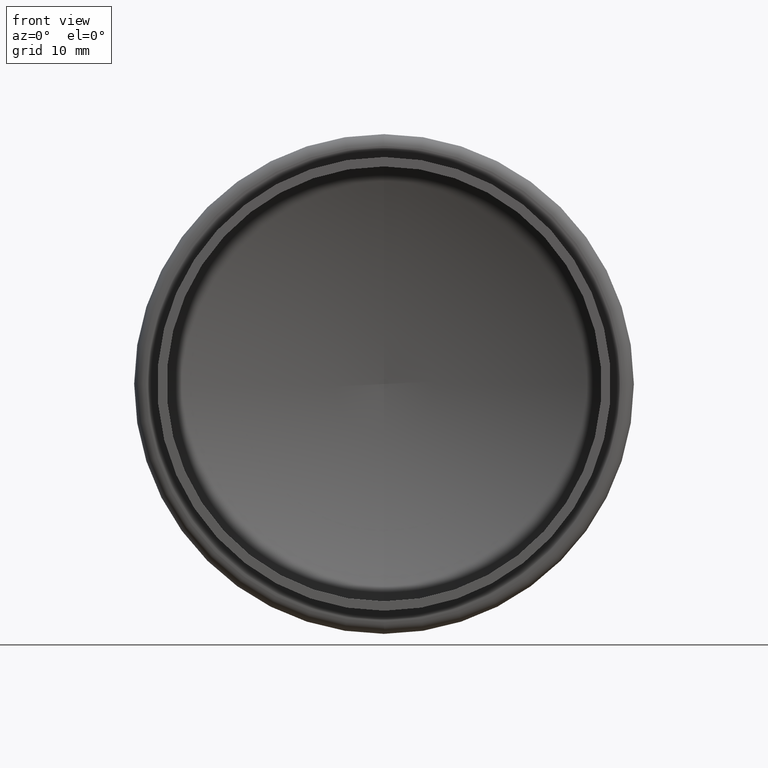
[diagram: clean part render]
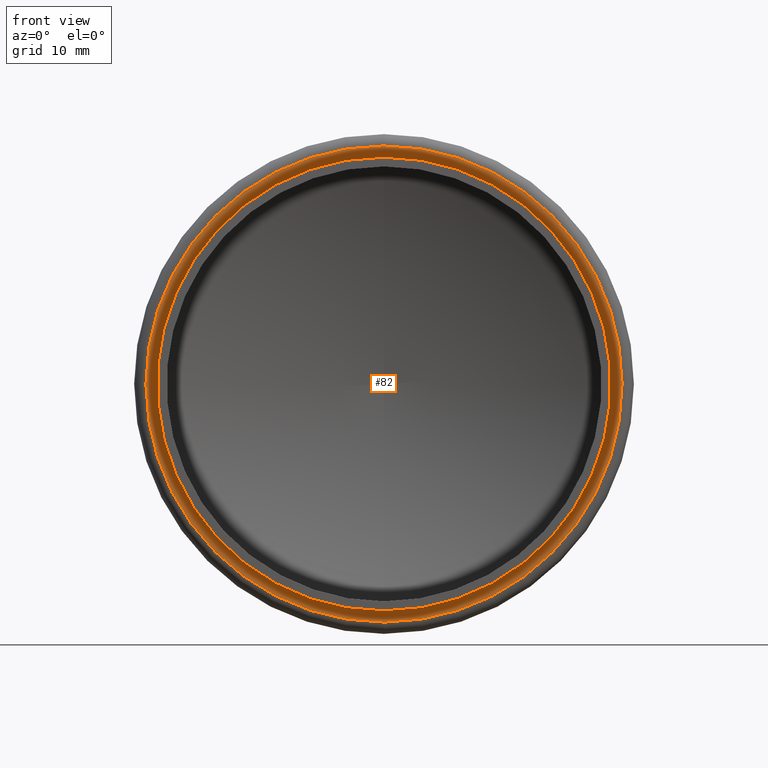
[diagram: same view with one face highlighted and labeled with its STEP entity id]
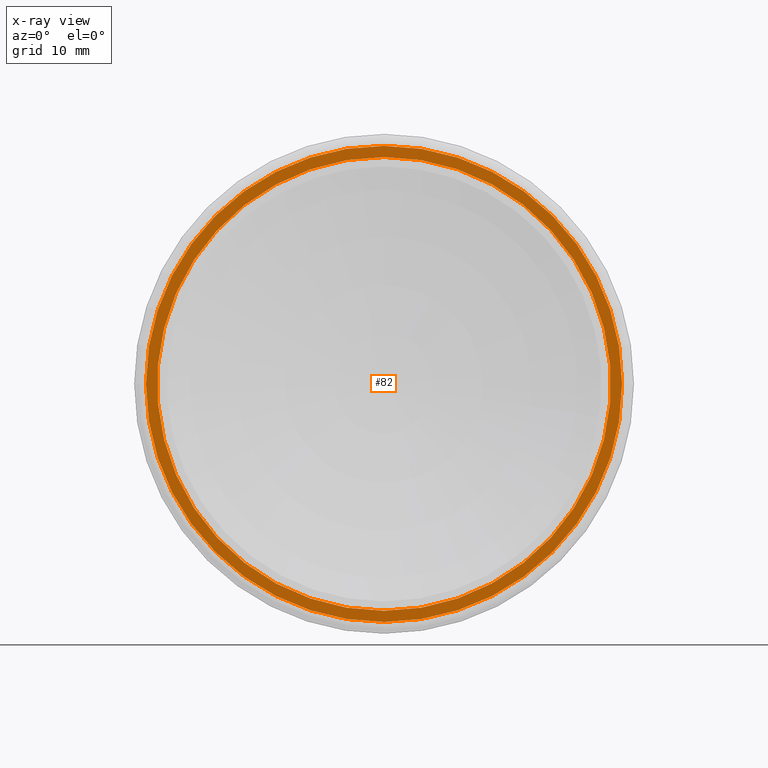
[diagram: x-ray of the same camera — body ghosted, the highlighted face saturated]
A machine part, front view. The second image highlights one B-rep face of the part: STEP entity #82.
The next image is the same camera in x-ray: the body ghosted, the highlighted face saturated — about 0% of this face is hidden behind the body in this view.
In plain terms, the highlighted planar face has unit normal (0, -1, -0).
Its self-contained STEP definition (entity closure, byte-faithful):
#9 = FACE_BOUND ( 'NONE', #166, .T. ) ;
#35 = VERTEX_POINT ( 'NONE', #44 ) ;
#41 = DIRECTION ( 'NONE',  ( -0.0000000000000000000, -1.000000000000000000, -0.0000000000000000000 ) ) ;
#42 = CARTESIAN_POINT ( 'NONE',  ( 0.0000000000000000000, 9.000000000000000000, 0.0000000000000000000 ) ) ;
#44 = CARTESIAN_POINT ( 'NONE',  ( 0.0000000000000000000, 9.000000000000000000, -20.19999999999999200 ) ) ;
#45 = EDGE_CURVE ( 'NONE', #120, #131, #408, .T. ) ;
#82 = ADVANCED_FACE ( 'NONE', ( #276, #9 ), #157, .T. ) ;
#92 = ORIENTED_EDGE ( 'NONE', *, *, #335, .F. ) ;
#93 = DIRECTION ( 'NONE',  ( -0.0000000000000000000, -1.000000000000000000, -0.0000000000000000000 ) ) ;
#95 = CARTESIAN_POINT ( 'NONE',  ( 0.0000000000000000000, 9.000000000000000000, 0.0000000000000000000 ) ) ;
#106 = CARTESIAN_POINT ( 'NONE',  ( 0.0000000000000000000, 9.000000000000000000, 0.0000000000000000000 ) ) ;
#120 = VERTEX_POINT ( 'NONE', #314 ) ;
#131 = VERTEX_POINT ( 'NONE', #148 ) ;
#148 = CARTESIAN_POINT ( 'NONE',  ( 2.357445088358655500E-015, 9.000000000000000000, 19.25000000000000400 ) ) ;
#157 = PLANE ( 'NONE',  #342 ) ;
#160 = CIRCLE ( 'NONE', #358, 19.25000000000000400 ) ;
#166 = EDGE_LOOP ( 'NONE', ( #610, #92 ) ) ;
#209 = CARTESIAN_POINT ( 'NONE',  ( 19.25000000000000400, 9.000000000000000000, 0.0000000000000000000 ) ) ;
#220 = EDGE_LOOP ( 'NONE', ( #506, #231 ) ) ;
#229 = AXIS2_PLACEMENT_3D ( 'NONE', #286, #41, #441 ) ;
#231 = ORIENTED_EDGE ( 'NONE', *, *, #242, .T. ) ;
#235 = CIRCLE ( 'NONE', #393, 20.19999999999999200 ) ;
#242 = EDGE_CURVE ( 'NONE', #499, #35, #235, .T. ) ;
#276 = FACE_OUTER_BOUND ( 'NONE', #220, .T. ) ;
#286 = CARTESIAN_POINT ( 'NONE',  ( 0.0000000000000000000, 9.000000000000000000, 0.0000000000000000000 ) ) ;
#296 = DIRECTION ( 'NONE',  ( -0.0000000000000000000, -1.000000000000000000, -0.0000000000000000000 ) ) ;
#314 = CARTESIAN_POINT ( 'NONE',  ( 0.0000000000000000000, 9.000000000000000000, -19.25000000000000400 ) ) ;
#335 = EDGE_CURVE ( 'NONE', #131, #120, #160, .T. ) ;
#339 = CIRCLE ( 'NONE', #433, 20.19999999999999200 ) ;
#342 = AXIS2_PLACEMENT_3D ( 'NONE', #209, #370, #474 ) ;
#358 = AXIS2_PLACEMENT_3D ( 'NONE', #42, #93, #555 ) ;
#370 = DIRECTION ( 'NONE',  ( 0.0000000000000000000, -1.000000000000000000, -0.0000000000000000000 ) ) ;
#393 = AXIS2_PLACEMENT_3D ( 'NONE', #95, #296, #447 ) ;
#408 = CIRCLE ( 'NONE', #229, 19.25000000000000400 ) ;
#433 = AXIS2_PLACEMENT_3D ( 'NONE', #106, #464, #515 ) ;
#441 = DIRECTION ( 'NONE',  ( 0.0000000000000000000, 0.0000000000000000000, -1.000000000000000000 ) ) ;
#447 = DIRECTION ( 'NONE',  ( 0.0000000000000000000, 0.0000000000000000000, -1.000000000000000000 ) ) ;
#452 = EDGE_CURVE ( 'NONE', #35, #499, #339, .T. ) ;
#464 = DIRECTION ( 'NONE',  ( -0.0000000000000000000, -1.000000000000000000, -0.0000000000000000000 ) ) ;
#474 = DIRECTION ( 'NONE',  ( 0.0000000000000000000, 0.0000000000000000000, -1.000000000000000000 ) ) ;
#499 = VERTEX_POINT ( 'NONE', #558 ) ;
#506 = ORIENTED_EDGE ( 'NONE', *, *, #452, .T. ) ;
#515 = DIRECTION ( 'NONE',  ( 0.0000000000000000000, 0.0000000000000000000, -1.000000000000000000 ) ) ;
#555 = DIRECTION ( 'NONE',  ( 0.0000000000000000000, 0.0000000000000000000, -1.000000000000000000 ) ) ;
#558 = CARTESIAN_POINT ( 'NONE',  ( 2.535018874235020400E-015, 9.000000000000000000, 20.19999999999999200 ) ) ;
#610 = ORIENTED_EDGE ( 'NONE', *, *, #45, .F. ) ;